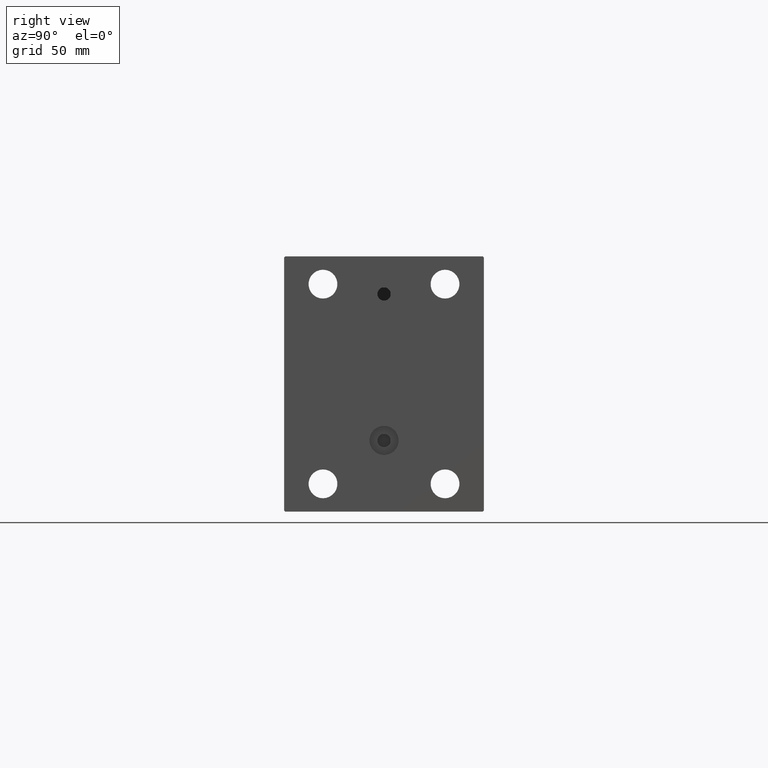
[diagram: clean part render]
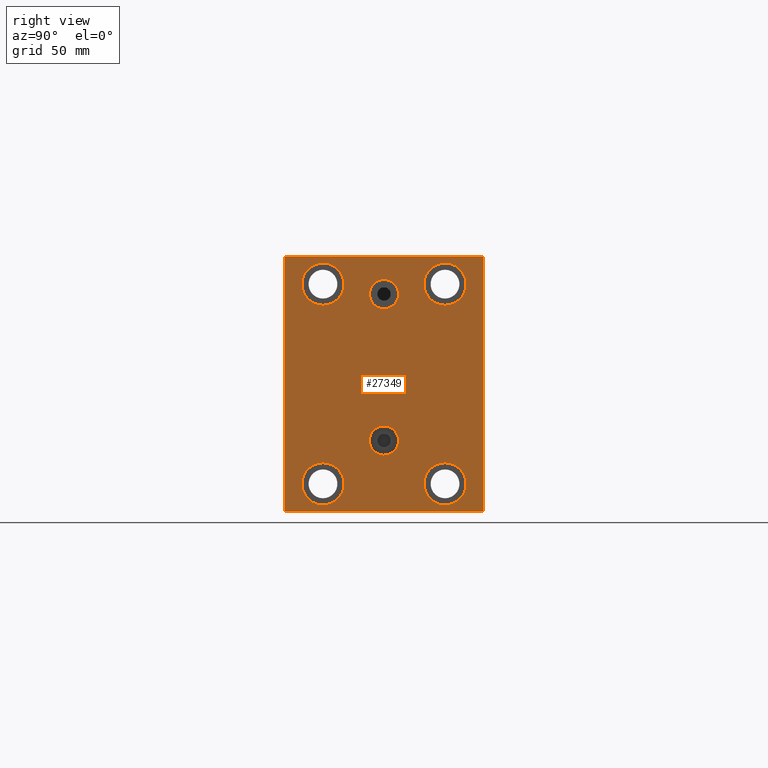
[diagram: same view with one face highlighted and labeled with its STEP entity id]
A machine part, right view. The second image highlights one B-rep face of the part: STEP entity #27349.
In plain terms, the highlighted planar face has unit normal (1, 0, 0).
Its self-contained STEP definition (entity closure, byte-faithful):
#477 = ORIENTED_EDGE ( 'NONE', *, *, #23396, .T. ) ;
#723 = CARTESIAN_POINT ( 'NONE',  ( 198.0000000000000000, -45.00000000000000000, 57.49999999999999289 ) ) ;
#861 = VERTEX_POINT ( 'NONE', #21431 ) ;
#896 = DIRECTION ( 'NONE',  ( -0.000000000000000000, -0.7071067811865671127, 0.7071067811865279218 ) ) ;
#1270 = CIRCLE ( 'NONE', #37426, 6.580000000000002736 ) ;
#1797 = AXIS2_PLACEMENT_3D ( 'NONE', #9145, #38119, #23951 ) ;
#1983 = CARTESIAN_POINT ( 'NONE',  ( 198.0000000000000000, -50.99999999999877787, -51.00000000000160583 ) ) ;
#2028 = ORIENTED_EDGE ( 'NONE', *, *, #15267, .F. ) ;
#2057 = DIRECTION ( 'NONE',  ( -0.000000000000000000, 0.7071067811865279218, 0.7071067811865671127 ) ) ;
#2336 = EDGE_CURVE ( 'NONE', #22938, #19320, #22113, .T. ) ;
#2401 = ORIENTED_EDGE ( 'NONE', *, *, #23821, .T. ) ;
#2934 = CIRCLE ( 'NONE', #25561, 9.500000000000001776 ) ;
#3783 = CARTESIAN_POINT ( 'NONE',  ( 198.0000000000000000, 0.000000000000000000, 0.000000000000000000 ) ) ;
#4019 = FACE_OUTER_BOUND ( 'NONE', #25144, .T. ) ;
#4254 = DIRECTION ( 'NONE',  ( 1.000000000000000000, 0.000000000000000000, 0.000000000000000000 ) ) ;
#4363 = DIRECTION ( 'NONE',  ( 0.000000000000000000, 0.000000000000000000, 1.000000000000000000 ) ) ;
#5359 = CIRCLE ( 'NONE', #43762, 6.580000000000002736 ) ;
#5535 = LINE ( 'NONE', #1983, #42205 ) ;
#6487 = ORIENTED_EDGE ( 'NONE', *, *, #2336, .T. ) ;
#6530 = CARTESIAN_POINT ( 'NONE',  ( 198.0000000000000000, 45.00000000000000000, 57.50000000000000711 ) ) ;
#7037 = LINE ( 'NONE', #14559, #27015 ) ;
#7086 = ORIENTED_EDGE ( 'NONE', *, *, #11320, .T. ) ;
#7346 = DIRECTION ( 'NONE',  ( 0.000000000000000000, 0.000000000000000000, -1.000000000000000000 ) ) ;
#7806 = FACE_BOUND ( 'NONE', #43059, .T. ) ;
#7840 = CARTESIAN_POINT ( 'NONE',  ( 198.0000000000000000, 27.49999999999998934, -35.49999999999998579 ) ) ;
#7946 = EDGE_CURVE ( 'NONE', #18521, #26659, #40278, .T. ) ;
#8344 = ORIENTED_EDGE ( 'NONE', *, *, #42572, .T. ) ;
#8544 = VERTEX_POINT ( 'NONE', #40042 ) ;
#8775 = CARTESIAN_POINT ( 'NONE',  ( 198.0000000000000000, -50.99999999999877787, 51.00000000000160583 ) ) ;
#8831 = EDGE_LOOP ( 'NONE', ( #23934, #6487 ) ) ;
#8857 = EDGE_CURVE ( 'NONE', #10940, #28220, #23660, .T. ) ;
#9129 = VECTOR ( 'NONE', #31741, 1000.000000000000000 ) ;
#9145 = CARTESIAN_POINT ( 'NONE',  ( 198.0000000000000000, 27.50000000000001066, 45.00000000000000711 ) ) ;
#9769 = VERTEX_POINT ( 'NONE', #26999 ) ;
#10070 = CARTESIAN_POINT ( 'NONE',  ( 198.0000000000000000, 51.00000000000127187, -50.99999999999844391 ) ) ;
#10416 = LINE ( 'NONE', #723, #14358 ) ;
#10472 = EDGE_LOOP ( 'NONE', ( #29508, #2028 ) ) ;
#10940 = VERTEX_POINT ( 'NONE', #7840 ) ;
#11200 = AXIS2_PLACEMENT_3D ( 'NONE', #20846, #46106, #13790 ) ;
#11320 = EDGE_CURVE ( 'NONE', #34500, #20478, #12636, .T. ) ;
#11332 = CIRCLE ( 'NONE', #40727, 9.500000000000001776 ) ;
#11445 = DIRECTION ( 'NONE',  ( -1.000000000000000000, -0.000000000000000000, -0.000000000000000000 ) ) ;
#11571 = CARTESIAN_POINT ( 'NONE',  ( 198.0000000000000000, 3.122849337825749828E-15, -25.49999999999999645 ) ) ;
#11589 = CARTESIAN_POINT ( 'NONE',  ( 198.0000000000000000, 27.50000000000001066, 45.00000000000000711 ) ) ;
#11803 = CARTESIAN_POINT ( 'NONE',  ( 198.0000000000000000, 27.49999999999998934, -54.49999999999998579 ) ) ;
#12636 = LINE ( 'NONE', #16636, #19988 ) ;
#12759 = DIRECTION ( 'NONE',  ( 0.000000000000000000, -0.7071067811865671127, -0.7071067811865279218 ) ) ;
#13241 = DIRECTION ( 'NONE',  ( 0.000000000000000000, 0.000000000000000000, 1.000000000000000000 ) ) ;
#13317 = CIRCLE ( 'NONE', #19353, 6.580000000000002736 ) ;
#13420 = CIRCLE ( 'NONE', #45817, 6.580000000000002736 ) ;
#13488 = VECTOR ( 'NONE', #12759, 1000.000000000000000 ) ;
#13790 = DIRECTION ( 'NONE',  ( 0.000000000000000000, 0.000000000000000000, 1.000000000000000000 ) ) ;
#14026 = EDGE_CURVE ( 'NONE', #19320, #22938, #45687, .T. ) ;
#14259 = ORIENTED_EDGE ( 'NONE', *, *, #23047, .T. ) ;
#14298 = LINE ( 'NONE', #6530, #9129 ) ;
#14358 = VECTOR ( 'NONE', #7346, 1000.000000000000000 ) ;
#14559 = CARTESIAN_POINT ( 'NONE',  ( 198.0000000000000000, -45.00000000000000000, -57.50000000000000711 ) ) ;
#14894 = ORIENTED_EDGE ( 'NONE', *, *, #19189, .F. ) ;
#15030 = CARTESIAN_POINT ( 'NONE',  ( 198.0000000000000000, -27.50000000000000000, -35.49999999999998579 ) ) ;
#15048 = LINE ( 'NONE', #29657, #29266 ) ;
#15099 = PLANE ( 'NONE',  #22615 ) ;
#15267 = EDGE_CURVE ( 'NONE', #18651, #22141, #13317, .T. ) ;
#15579 = DIRECTION ( 'NONE',  ( -1.000000000000000000, -0.000000000000000000, -0.000000000000000000 ) ) ;
#16576 = ORIENTED_EDGE ( 'NONE', *, *, #39446, .F. ) ;
#16636 = CARTESIAN_POINT ( 'NONE',  ( 198.0000000000000000, 45.00000000000001421, -57.50000000000000711 ) ) ;
#17036 = CARTESIAN_POINT ( 'NONE',  ( 198.0000000000000000, -44.50000000000002842, -57.50000000000000711 ) ) ;
#17486 = VERTEX_POINT ( 'NONE', #44559 ) ;
#17747 = DIRECTION ( 'NONE',  ( -1.000000000000000000, -0.000000000000000000, -0.000000000000000000 ) ) ;
#17858 = DIRECTION ( 'NONE',  ( 0.000000000000000000, 1.000000000000000000, 0.000000000000000000 ) ) ;
#17990 = CIRCLE ( 'NONE', #36822, 9.500000000000001776 ) ;
#18132 = EDGE_LOOP ( 'NONE', ( #8344, #32600 ) ) ;
#18332 = CARTESIAN_POINT ( 'NONE',  ( 198.0000000000000000, 3.928666931664708475E-15, -18.91999999999999105 ) ) ;
#18521 = VERTEX_POINT ( 'NONE', #15030 ) ;
#18624 = FACE_BOUND ( 'NONE', #8831, .T. ) ;
#18651 = VERTEX_POINT ( 'NONE', #18332 ) ;
#19189 = EDGE_CURVE ( 'NONE', #20065, #17486, #1270, .T. ) ;
#19320 = VERTEX_POINT ( 'NONE', #24010 ) ;
#19353 = AXIS2_PLACEMENT_3D ( 'NONE', #11571, #44126, #25714 ) ;
#19988 = VECTOR ( 'NONE', #27475, 1000.000000000000000 ) ;
#20033 = ORIENTED_EDGE ( 'NONE', *, *, #34357, .T. ) ;
#20065 = VERTEX_POINT ( 'NONE', #35905 ) ;
#20478 = VERTEX_POINT ( 'NONE', #29399 ) ;
#20588 = ORIENTED_EDGE ( 'NONE', *, *, #26913, .T. ) ;
#20807 = CARTESIAN_POINT ( 'NONE',  ( 198.0000000000000000, 3.122849337825749828E-15, -25.49999999999999645 ) ) ;
#20846 = CARTESIAN_POINT ( 'NONE',  ( 198.0000000000000000, -27.49999999999998934, 45.00000000000000711 ) ) ;
#21431 = CARTESIAN_POINT ( 'NONE',  ( 198.0000000000000000, 44.50000000000002842, 57.50000000000000711 ) ) ;
#21588 = DIRECTION ( 'NONE',  ( 0.000000000000000000, 0.000000000000000000, 1.000000000000000000 ) ) ;
#22113 = CIRCLE ( 'NONE', #1797, 9.500000000000001776 ) ;
#22141 = VERTEX_POINT ( 'NONE', #38230 ) ;
#22419 = DIRECTION ( 'NONE',  ( 0.000000000000000000, 0.000000000000000000, 1.000000000000000000 ) ) ;
#22615 = AXIS2_PLACEMENT_3D ( 'NONE', #3783, #4254, #28768 ) ;
#22631 = DIRECTION ( 'NONE',  ( 1.000000000000000000, 0.000000000000000000, 0.000000000000000000 ) ) ;
#22786 = EDGE_CURVE ( 'NONE', #22141, #18651, #13420, .T. ) ;
#22938 = VERTEX_POINT ( 'NONE', #37548 ) ;
#23047 = EDGE_CURVE ( 'NONE', #8544, #45526, #17990, .T. ) ;
#23396 = EDGE_CURVE ( 'NONE', #25065, #42247, #7037, .T. ) ;
#23627 = CARTESIAN_POINT ( 'NONE',  ( 198.0000000000000000, -45.00000000000000000, 57.00000000000004974 ) ) ;
#23660 = CIRCLE ( 'NONE', #29688, 9.500000000000001776 ) ;
#23821 = EDGE_CURVE ( 'NONE', #45526, #8544, #31516, .T. ) ;
#23934 = ORIENTED_EDGE ( 'NONE', *, *, #14026, .T. ) ;
#23943 = EDGE_CURVE ( 'NONE', #9769, #46668, #26902, .T. ) ;
#23951 = DIRECTION ( 'NONE',  ( 0.000000000000000000, 0.000000000000000000, 1.000000000000000000 ) ) ;
#24010 = CARTESIAN_POINT ( 'NONE',  ( 198.0000000000000000, 27.50000000000001066, 35.50000000000000711 ) ) ;
#24131 = VECTOR ( 'NONE', #2057, 1000.000000000000000 ) ;
#24134 = CARTESIAN_POINT ( 'NONE',  ( 198.0000000000000000, 45.00000000000001421, -57.00000000000003553 ) ) ;
#25065 = VERTEX_POINT ( 'NONE', #17036 ) ;
#25144 = EDGE_LOOP ( 'NONE', ( #32157, #29263, #44970, #20588, #477, #46448, #7086, #20033 ) ) ;
#25561 = AXIS2_PLACEMENT_3D ( 'NONE', #34830, #38362, #21588 ) ;
#25710 = FACE_BOUND ( 'NONE', #10472, .T. ) ;
#25714 = DIRECTION ( 'NONE',  ( 0.000000000000000000, 0.000000000000000000, 1.000000000000000000 ) ) ;
#25942 = CARTESIAN_POINT ( 'NONE',  ( 198.0000000000000000, 44.50000000000004263, -57.50000000000000711 ) ) ;
#26659 = VERTEX_POINT ( 'NONE', #27715 ) ;
#26902 = LINE ( 'NONE', #8775, #13488 ) ;
#26913 = EDGE_CURVE ( 'NONE', #44796, #25065, #5535, .T. ) ;
#26999 = CARTESIAN_POINT ( 'NONE',  ( 198.0000000000000000, -44.50000000000000000, 57.49999999999999289 ) ) ;
#27015 = VECTOR ( 'NONE', #17858, 1000.000000000000000 ) ;
#27349 = ADVANCED_FACE ( 'NONE', ( #7806, #25710, #40572, #43406, #18624, #33002, #4019 ), #15099, .T. ) ;
#27475 = DIRECTION ( 'NONE',  ( 0.000000000000000000, -1.206764157201257045E-16, 1.000000000000000000 ) ) ;
#27715 = CARTESIAN_POINT ( 'NONE',  ( 198.0000000000000000, -27.50000000000000000, -54.49999999999998579 ) ) ;
#28220 = VERTEX_POINT ( 'NONE', #11803 ) ;
#28768 = DIRECTION ( 'NONE',  ( 0.000000000000000000, 0.000000000000000000, -1.000000000000000000 ) ) ;
#29263 = ORIENTED_EDGE ( 'NONE', *, *, #23943, .T. ) ;
#29266 = VECTOR ( 'NONE', #896, 1000.000000000000000 ) ;
#29368 = ORIENTED_EDGE ( 'NONE', *, *, #7946, .T. ) ;
#29399 = CARTESIAN_POINT ( 'NONE',  ( 198.0000000000000000, 45.00000000000000000, 57.00000000000003553 ) ) ;
#29508 = ORIENTED_EDGE ( 'NONE', *, *, #22786, .F. ) ;
#29657 = CARTESIAN_POINT ( 'NONE',  ( 198.0000000000000000, 50.99999999999877787, 51.00000000000160583 ) ) ;
#29688 = AXIS2_PLACEMENT_3D ( 'NONE', #43759, #11445, #4363 ) ;
#29926 = CARTESIAN_POINT ( 'NONE',  ( 198.0000000000000000, -45.00000000000000000, -57.00000000000006395 ) ) ;
#30170 = CARTESIAN_POINT ( 'NONE',  ( 198.0000000000000000, -5.306417150674643778E-15, 40.50000000000000711 ) ) ;
#31516 = CIRCLE ( 'NONE', #11200, 9.500000000000001776 ) ;
#31741 = DIRECTION ( 'NONE',  ( 0.000000000000000000, -1.000000000000000000, -1.541976423090495387E-16 ) ) ;
#32157 = ORIENTED_EDGE ( 'NONE', *, *, #43638, .T. ) ;
#32600 = ORIENTED_EDGE ( 'NONE', *, *, #8857, .T. ) ;
#32897 = EDGE_LOOP ( 'NONE', ( #40873, #29368 ) ) ;
#33002 = FACE_BOUND ( 'NONE', #32897, .T. ) ;
#34049 = DIRECTION ( 'NONE',  ( -0.000000000000000000, 0.7071067811865671127, -0.7071067811865279218 ) ) ;
#34246 = DIRECTION ( 'NONE',  ( -1.000000000000000000, -0.000000000000000000, -0.000000000000000000 ) ) ;
#34353 = CARTESIAN_POINT ( 'NONE',  ( 198.0000000000000000, 27.49999999999998934, -44.99999999999998579 ) ) ;
#34357 = EDGE_CURVE ( 'NONE', #20478, #861, #15048, .T. ) ;
#34478 = CARTESIAN_POINT ( 'NONE',  ( 198.0000000000000000, -27.49999999999998934, 45.00000000000000711 ) ) ;
#34500 = VERTEX_POINT ( 'NONE', #24134 ) ;
#34591 = DIRECTION ( 'NONE',  ( 0.000000000000000000, 0.000000000000000000, 1.000000000000000000 ) ) ;
#34830 = CARTESIAN_POINT ( 'NONE',  ( 198.0000000000000000, -27.50000000000000000, -44.99999999999998579 ) ) ;
#35288 = EDGE_CURVE ( 'NONE', #26659, #18521, #2934, .T. ) ;
#35905 = CARTESIAN_POINT ( 'NONE',  ( 198.0000000000000000, -4.500599556835684736E-15, 47.08000000000001251 ) ) ;
#36385 = DIRECTION ( 'NONE',  ( 1.000000000000000000, 0.000000000000000000, 0.000000000000000000 ) ) ;
#36497 = AXIS2_PLACEMENT_3D ( 'NONE', #42519, #17747, #39441 ) ;
#36822 = AXIS2_PLACEMENT_3D ( 'NONE', #34478, #34246, #13241 ) ;
#37426 = AXIS2_PLACEMENT_3D ( 'NONE', #30170, #22631, #44584 ) ;
#37548 = CARTESIAN_POINT ( 'NONE',  ( 198.0000000000000000, 27.50000000000001066, 54.50000000000000711 ) ) ;
#38119 = DIRECTION ( 'NONE',  ( -1.000000000000000000, -0.000000000000000000, -0.000000000000000000 ) ) ;
#38230 = CARTESIAN_POINT ( 'NONE',  ( 198.0000000000000000, 3.122849337825749828E-15, -32.07999999999999829 ) ) ;
#38362 = DIRECTION ( 'NONE',  ( -1.000000000000000000, -0.000000000000000000, -0.000000000000000000 ) ) ;
#38591 = LINE ( 'NONE', #10070, #24131 ) ;
#38981 = DIRECTION ( 'NONE',  ( 1.000000000000000000, 0.000000000000000000, -0.000000000000000000 ) ) ;
#39441 = DIRECTION ( 'NONE',  ( 0.000000000000000000, 0.000000000000000000, 1.000000000000000000 ) ) ;
#39446 = EDGE_CURVE ( 'NONE', #17486, #20065, #5359, .T. ) ;
#39930 = DIRECTION ( 'NONE',  ( 0.000000000000000000, 0.000000000000000000, -1.000000000000000000 ) ) ;
#40042 = CARTESIAN_POINT ( 'NONE',  ( 198.0000000000000000, -27.49999999999998934, 54.50000000000000711 ) ) ;
#40170 = CARTESIAN_POINT ( 'NONE',  ( 198.0000000000000000, -5.306417150674643778E-15, 40.50000000000000711 ) ) ;
#40278 = CIRCLE ( 'NONE', #36497, 9.500000000000001776 ) ;
#40572 = FACE_BOUND ( 'NONE', #18132, .T. ) ;
#40727 = AXIS2_PLACEMENT_3D ( 'NONE', #34353, #41894, #34591 ) ;
#40873 = ORIENTED_EDGE ( 'NONE', *, *, #35288, .T. ) ;
#41174 = AXIS2_PLACEMENT_3D ( 'NONE', #11589, #15579, #22419 ) ;
#41600 = CARTESIAN_POINT ( 'NONE',  ( 198.0000000000000000, -27.49999999999998934, 35.50000000000000711 ) ) ;
#41894 = DIRECTION ( 'NONE',  ( -1.000000000000000000, -0.000000000000000000, -0.000000000000000000 ) ) ;
#42205 = VECTOR ( 'NONE', #34049, 1000.000000000000000 ) ;
#42247 = VERTEX_POINT ( 'NONE', #25942 ) ;
#42519 = CARTESIAN_POINT ( 'NONE',  ( 198.0000000000000000, -27.50000000000000000, -44.99999999999998579 ) ) ;
#42572 = EDGE_CURVE ( 'NONE', #28220, #10940, #11332, .T. ) ;
#42921 = EDGE_CURVE ( 'NONE', #46668, #44796, #10416, .T. ) ;
#42994 = DIRECTION ( 'NONE',  ( 0.000000000000000000, 0.000000000000000000, 1.000000000000000000 ) ) ;
#43059 = EDGE_LOOP ( 'NONE', ( #16576, #14894 ) ) ;
#43384 = EDGE_LOOP ( 'NONE', ( #2401, #14259 ) ) ;
#43406 = FACE_BOUND ( 'NONE', #43384, .T. ) ;
#43477 = EDGE_CURVE ( 'NONE', #42247, #34500, #38591, .T. ) ;
#43638 = EDGE_CURVE ( 'NONE', #861, #9769, #14298, .T. ) ;
#43759 = CARTESIAN_POINT ( 'NONE',  ( 198.0000000000000000, 27.49999999999998934, -44.99999999999998579 ) ) ;
#43762 = AXIS2_PLACEMENT_3D ( 'NONE', #40170, #36385, #39930 ) ;
#44126 = DIRECTION ( 'NONE',  ( 1.000000000000000000, 0.000000000000000000, -0.000000000000000000 ) ) ;
#44559 = CARTESIAN_POINT ( 'NONE',  ( 198.0000000000000000, -5.306417150674643778E-15, 33.92000000000000881 ) ) ;
#44584 = DIRECTION ( 'NONE',  ( 0.000000000000000000, 0.000000000000000000, -1.000000000000000000 ) ) ;
#44796 = VERTEX_POINT ( 'NONE', #29926 ) ;
#44970 = ORIENTED_EDGE ( 'NONE', *, *, #42921, .T. ) ;
#45526 = VERTEX_POINT ( 'NONE', #41600 ) ;
#45687 = CIRCLE ( 'NONE', #41174, 9.500000000000001776 ) ;
#45817 = AXIS2_PLACEMENT_3D ( 'NONE', #20807, #38981, #42994 ) ;
#46106 = DIRECTION ( 'NONE',  ( -1.000000000000000000, -0.000000000000000000, -0.000000000000000000 ) ) ;
#46448 = ORIENTED_EDGE ( 'NONE', *, *, #43477, .T. ) ;
#46668 = VERTEX_POINT ( 'NONE', #23627 ) ;